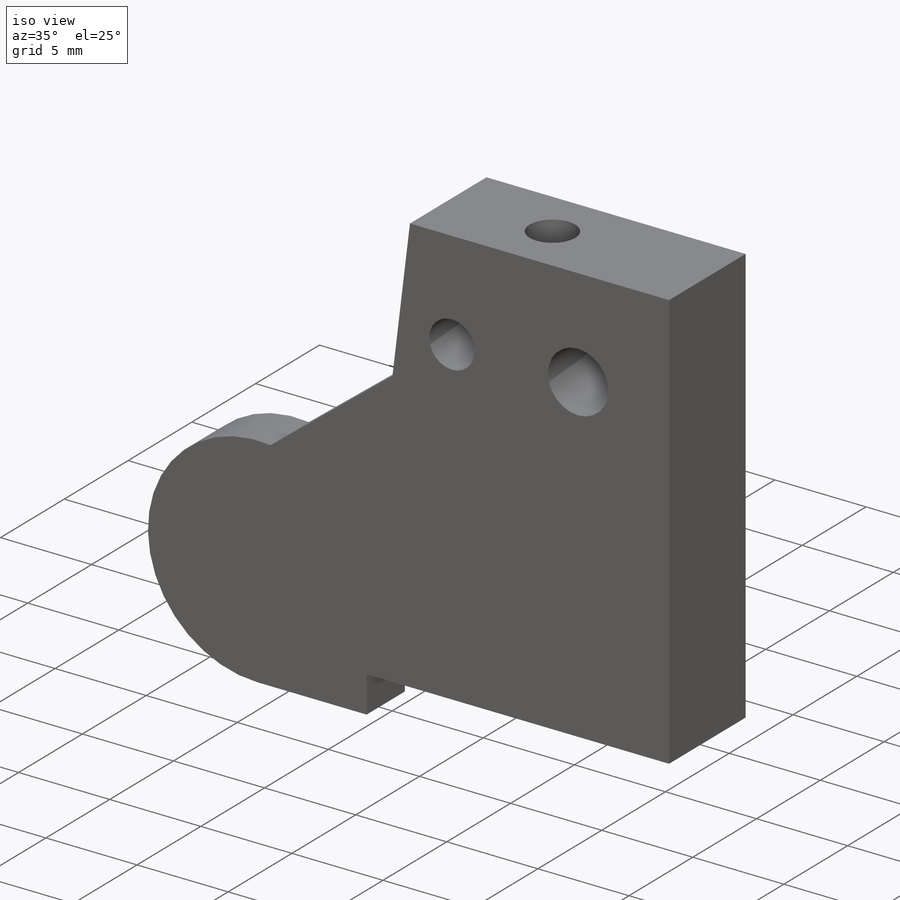
[diagram: iso view]
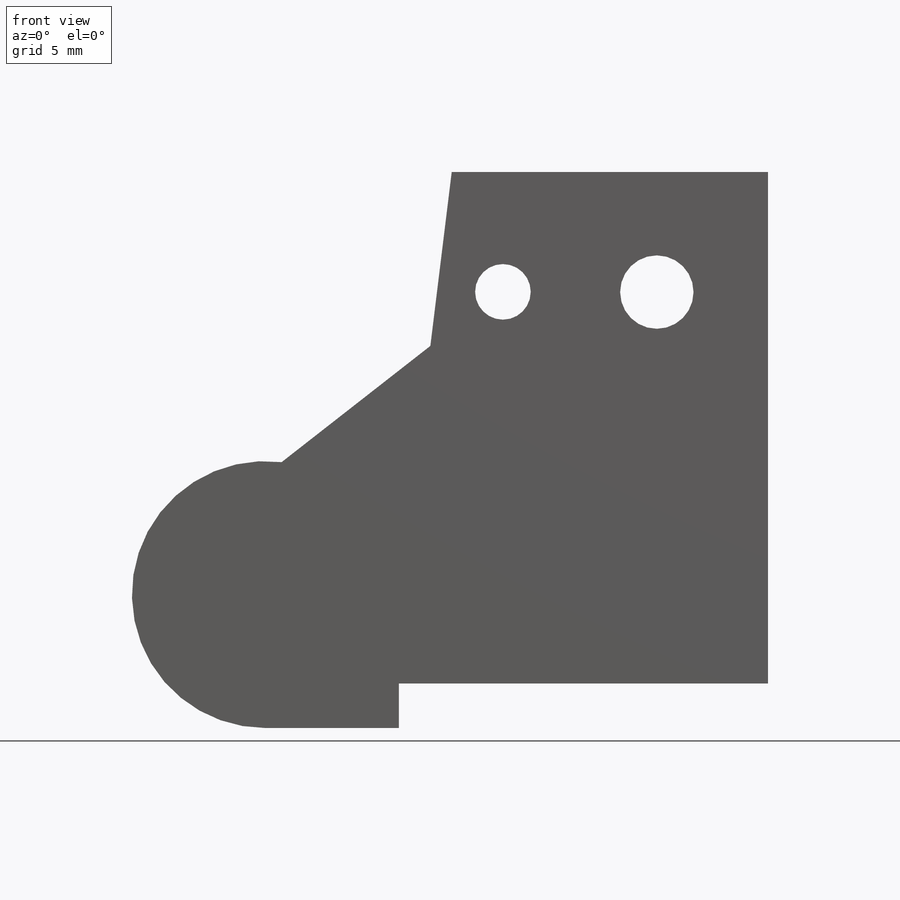
[diagram: front view]
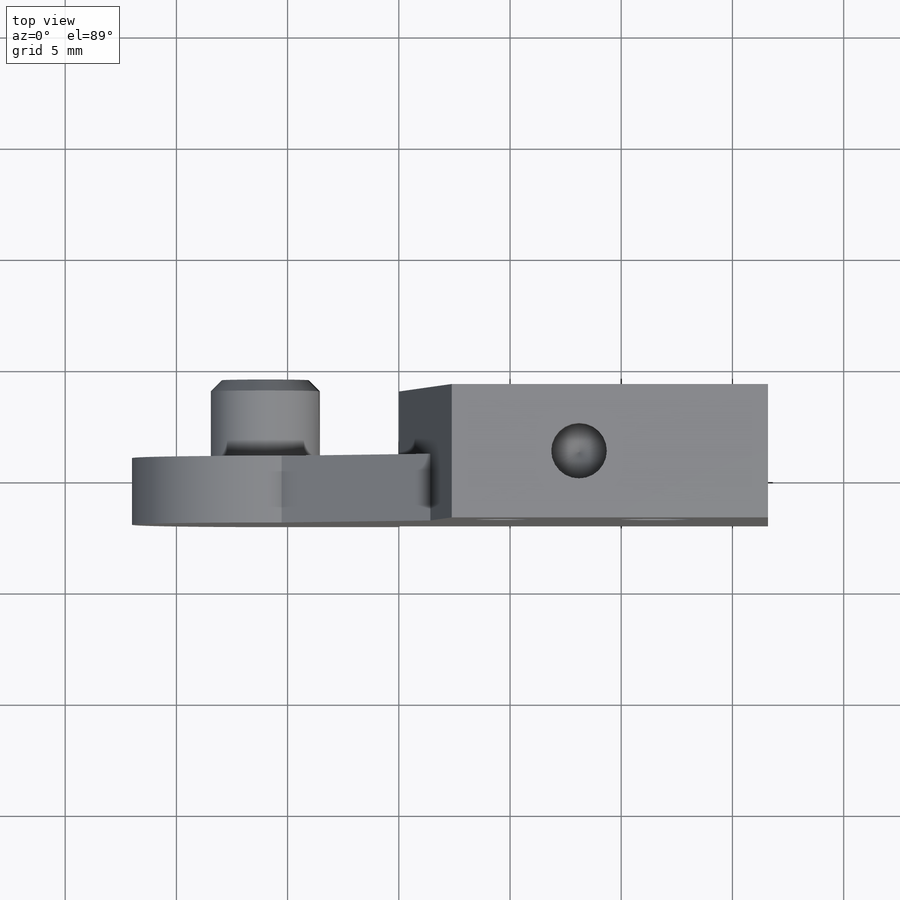
[diagram: top view]
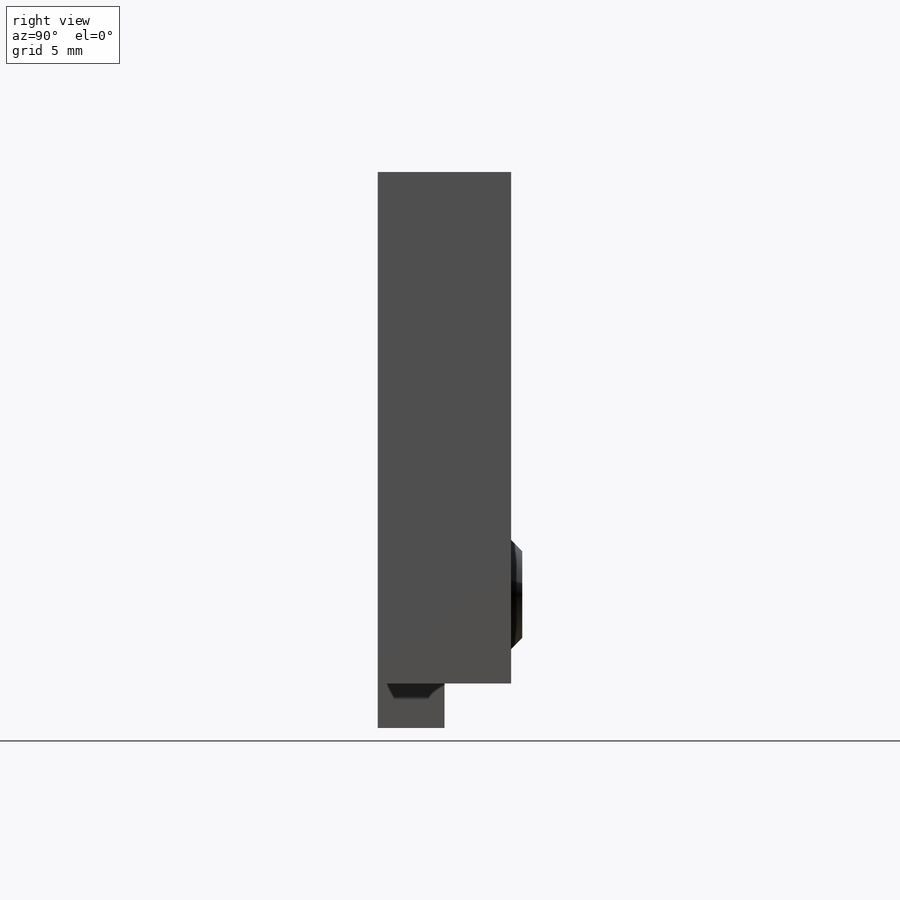
[diagram: right view]
SOLIDWORKS PART (.sldprt)
format: sldprt  version: not decoded by parser v0  size: 411,136 bytes
history: native  units: mm
features: sketch x16, hole x4, plane x3, extrude x3, thread x3, cut_extrude x2, chamfer x2, material x1, mirror x1, delete_body x1 (+9 scaffold rows collapsed)
feature tree (45):
  scaffold x9  (default folders/planes/origin — collapsed)
  material  "Material <não especificado>"
  plane  "Plano frontal"
  plane  "Plano superior"
  plane  "Plano direito"
  sketch  "Esboço1"  dims[c1.D7=3.0mm c1.D11=3.0mm c1.D13=3.0mm c1.D17=1.0mm c1.D1=16.6mm c1.D2=23.0mm c1.D3=6.0mm c1.D4=2.0mm c1.D5=6.0mm c1.D6=6.0mm c1.D8=8.0mm c1.D9=0.4mm c1.D10=3.0mm c1.D12=5.4mm c1.D14=5.0mm c1.D15=4.68mm c1.D16=5.39mm c2.D7=~6.419502mm]
  extrude  "Ressalto-extrusão1"  Depth=3mm
  extrude  "Ressalto-extrusão2"  [1 undecoded]
  sketch  "Esboço1<3>"  dims[D1=6.0mm]
  mirror  "Espelhar1"
  delete_body  "Corpo-Excluir1"
  sketch  "Esboço3"  dims[c1.D4=3.0mm c1.D1=~12.405681mm c2.D1=24.83deg c2.D2=~11.544153mm c3.D2=114.83deg c4.D2=~11.544153mm c5.D2=135.0deg c5.D3=5.87mm]
  sketch  "Esboço4"  dims[c1.D1=~13.386753mm c2.D1=7.0deg]
  cut_extrude  "Corte-extrusão1"  Depth=3mm
  sketch  "Esboço5"  dims[D1=0.0mm]
  cut_extrude  "Corte-extrusão2"  Depth=3mm
  chamfer  "Chanfro1"  Distance=6mm Angle=45deg
  sketch  "Esboço6"  dims[D1=4.0mm D2=4.0mm D3=6.6mm]
  hole  "Furo roscado de M3x0.51"  Diameter=2.5mm Depth=8.5mm
  sketch  "Esboço8"
  sketch  "Esboço7"  dims[hole-wizard template sketch: 50 standard entries collapsed; hole parameters above]
  hole  "Furo roscado de M3x0.52"  Diameter=2.5mm Depth=5.999mm
  sketch  "Esboço13"
  sketch  "Esboço12"  dims[hole-wizard template sketch: 47 standard entries collapsed; hole parameters kept: c15.Tap Drill Depth=5.999mm c15.D3=~14.816244mm c15.Drill Angle=118.0deg]
  thread  "Rosca de furo1"  Diameter=6mm  [1 undecoded]
  sketch  "Esboço14"  dims[D1=8.5mm]
  hole  "Furo roscado de M3x0.53"  [1 undecoded]
  sketch  "Esboço16"
  thread  "Rosca de furo2"  Diameter=3mm  [1 undecoded]
  sketch  "Esboço15"  dims[hole-wizard template sketch: 50 standard entries collapsed; hole parameters above]
  sketch  "Esboço17"  dims[D1=4.9mm]
  extrude  "Ressalto-extrusão3"  Depth=3.5mm
  chamfer  "Chanfro2"  Distance=0.5mm Angle=45deg
  hole  "Furo roscado de M4x0.73"  Diameter=3.3mm Depth=11.5mm
  sketch  "Esboço21"
  sketch  "Esboço20"  dims[hole-wizard template sketch: 47 standard entries collapsed; hole parameters kept: c15.Tap Drill Depth=11.5mm c15.D3=~14.816244mm c15.Drill Angle=118.0deg]
  thread  "Rosca de furo3"  Diameter=6mm  [1 undecoded]
decode coverage: 24 of 32 modeling features carry decoded parameters
note: ~ marks probable driven/reference dimensions
note: 5 parameter values undecoded
note: suppression state not decoded; provenance and decode notes live in map.json
